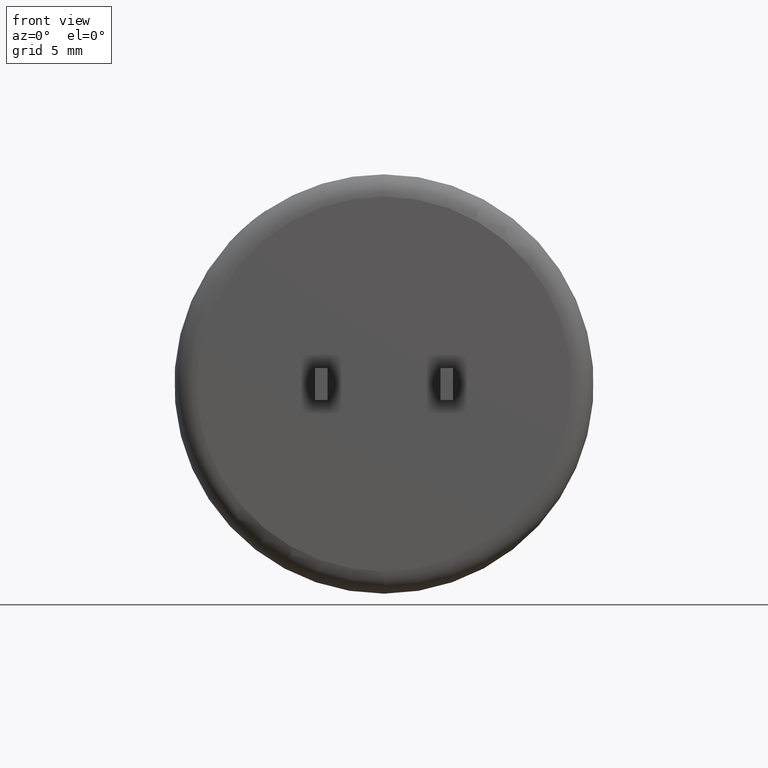
[diagram: clean part render]
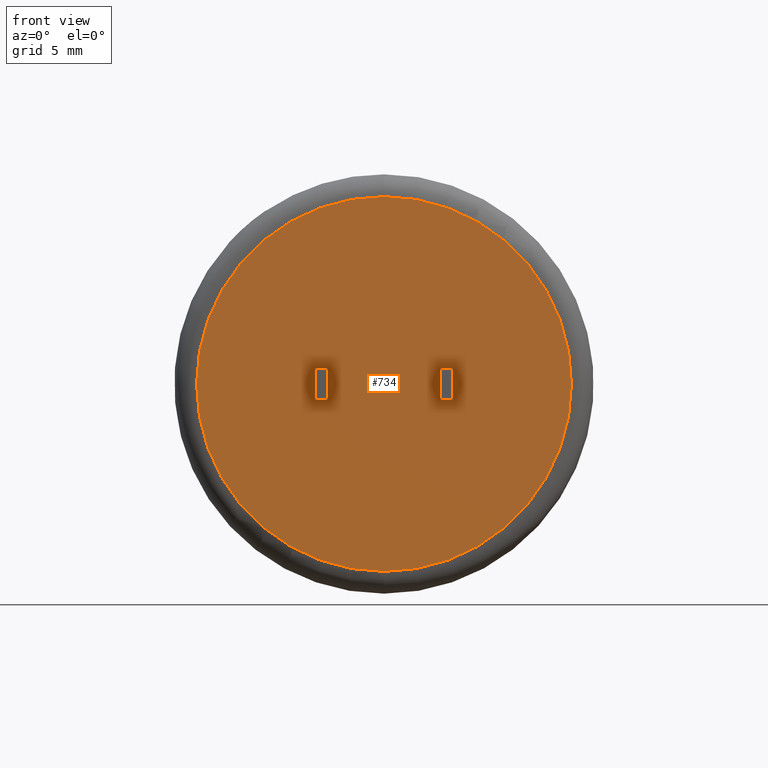
[diagram: same view with one face highlighted and labeled with its STEP entity id]
A machine part, front view. The second image highlights one B-rep face of the part: STEP entity #734.
In plain terms, the highlighted planar face has unit normal (0, 1, 0).
Its self-contained STEP definition (entity closure, byte-faithful):
#112 = CARTESIAN_POINT ( 'NONE',  ( 2.790000000000000000, 0.0000000000000000000, 0.6499999999999968000 ) ) ;
#119 = CARTESIAN_POINT ( 'NONE',  ( -2.289999999999999100, 0.0000000000000000000, -0.6499999999999945800 ) ) ;
#137 = CARTESIAN_POINT ( 'NONE',  ( 9.856569762937473500E-016, 0.0000000000000000000, -7.597000000000000400 ) ) ;
#142 = EDGE_CURVE ( 'NONE', #2269, #1828, #2143, .T. ) ;
#184 = EDGE_CURVE ( 'NONE', #2269, #1069, #1931, .T. ) ;
#188 = ORIENTED_EDGE ( 'NONE', *, *, #142, .F. ) ;
#205 = CARTESIAN_POINT ( 'NONE',  ( -2.789999999999999100, -0.0000000000000000000, -0.6499999999999945800 ) ) ;
#211 = VECTOR ( 'NONE', #2386, 1000.000000000000000 ) ;
#219 = ORIENTED_EDGE ( 'NONE', *, *, #1581, .T. ) ;
#239 = LINE ( 'NONE', #855, #2307 ) ;
#248 = CARTESIAN_POINT ( 'NONE',  ( -2.789999999999999100, 0.0000000000000000000, 5.403370410411914800E-015 ) ) ;
#320 = VERTEX_POINT ( 'NONE', #508 ) ;
#365 = EDGE_CURVE ( 'NONE', #1392, #320, #1459, .T. ) ;
#378 = ORIENTED_EDGE ( 'NONE', *, *, #1602, .T. ) ;
#429 = DIRECTION ( 'NONE',  ( 0.0000000000000000000, 0.0000000000000000000, 1.000000000000000000 ) ) ;
#440 = CARTESIAN_POINT ( 'NONE',  ( -2.289999999999999100, 0.0000000000000000000, 0.6500000000000053500 ) ) ;
#449 = CARTESIAN_POINT ( 'NONE',  ( 0.0000000000000000000, 0.0000000000000000000, 0.0000000000000000000 ) ) ;
#488 = CARTESIAN_POINT ( 'NONE',  ( -2.789999999999999100, 0.0000000000000000000, 0.6500000000000053500 ) ) ;
#508 = CARTESIAN_POINT ( 'NONE',  ( 2.290000000000000000, 0.0000000000000000000, 0.6499999999999966900 ) ) ;
#515 = AXIS2_PLACEMENT_3D ( 'NONE', #1498, #2765, #2121 ) ;
#663 = ORIENTED_EDGE ( 'NONE', *, *, #954, .T. ) ;
#698 = DIRECTION ( 'NONE',  ( -0.0000000000000000000, -0.0000000000000000000, -1.000000000000000000 ) ) ;
#734 = ADVANCED_FACE ( 'NONE', ( #1681, #2743, #1048 ), #1570, .F. ) ;
#788 = EDGE_CURVE ( 'NONE', #320, #1117, #1896, .T. ) ;
#855 = CARTESIAN_POINT ( 'NONE',  ( -2.789999999999999100, 0.0000000000000000000, 0.6500000000000053500 ) ) ;
#887 = VECTOR ( 'NONE', #1711, 1000.000000000000000 ) ;
#903 = CARTESIAN_POINT ( 'NONE',  ( 2.290000000000000000, 0.0000000000000000000, -0.6500000000000031300 ) ) ;
#925 = EDGE_CURVE ( 'NONE', #2752, #1392, #1104, .T. ) ;
#954 = EDGE_CURVE ( 'NONE', #2582, #1828, #1455, .T. ) ;
#962 = CARTESIAN_POINT ( 'NONE',  ( 2.290000000000000000, 0.0000000000000000000, -0.6500000000000031300 ) ) ;
#968 = EDGE_CURVE ( 'NONE', #1069, #2582, #239, .T. ) ;
#1044 = DIRECTION ( 'NONE',  ( 1.000000000000000000, 0.0000000000000000000, 0.0000000000000000000 ) ) ;
#1048 = FACE_BOUND ( 'NONE', #2123, .T. ) ;
#1069 = VERTEX_POINT ( 'NONE', #488 ) ;
#1082 = AXIS2_PLACEMENT_3D ( 'NONE', #449, #2563, #429 ) ;
#1098 = CIRCLE ( 'NONE', #1082, 7.597000000000000400 ) ;
#1104 = LINE ( 'NONE', #2720, #2168 ) ;
#1117 = VERTEX_POINT ( 'NONE', #1534 ) ;
#1118 = CARTESIAN_POINT ( 'NONE',  ( -2.289999999999999100, 0.0000000000000000000, 0.6500000000000053500 ) ) ;
#1167 = ORIENTED_EDGE ( 'NONE', *, *, #184, .T. ) ;
#1176 = CIRCLE ( 'NONE', #515, 7.597000000000000400 ) ;
#1257 = DIRECTION ( 'NONE',  ( 0.0000000000000000000, 0.0000000000000000000, 1.000000000000000000 ) ) ;
#1303 = CARTESIAN_POINT ( 'NONE',  ( 0.0000000000000000000, 0.0000000000000000000, 7.597000000000000400 ) ) ;
#1392 = VERTEX_POINT ( 'NONE', #112 ) ;
#1409 = DIRECTION ( 'NONE',  ( 1.000000000000000000, 0.0000000000000000000, 0.0000000000000000000 ) ) ;
#1455 = LINE ( 'NONE', #440, #2139 ) ;
#1459 = LINE ( 'NONE', #2013, #2552 ) ;
#1498 = CARTESIAN_POINT ( 'NONE',  ( 0.0000000000000000000, 0.0000000000000000000, 0.0000000000000000000 ) ) ;
#1534 = CARTESIAN_POINT ( 'NONE',  ( 2.290000000000000000, 0.0000000000000000000, -0.6500000000000031300 ) ) ;
#1570 = PLANE ( 'NONE',  #2721 ) ;
#1581 = EDGE_CURVE ( 'NONE', #2390, #1916, #1098, .T. ) ;
#1602 = EDGE_CURVE ( 'NONE', #1916, #2390, #1176, .T. ) ;
#1613 = LINE ( 'NONE', #962, #2509 ) ;
#1681 = FACE_OUTER_BOUND ( 'NONE', #2761, .T. ) ;
#1703 = DIRECTION ( 'NONE',  ( 0.0000000000000000000, -0.0000000000000000000, -1.000000000000000000 ) ) ;
#1711 = DIRECTION ( 'NONE',  ( 1.000000000000000000, 0.0000000000000000000, 0.0000000000000000000 ) ) ;
#1779 = DIRECTION ( 'NONE',  ( 0.0000000000000000000, -0.0000000000000000000, 1.000000000000000000 ) ) ;
#1828 = VERTEX_POINT ( 'NONE', #119 ) ;
#1848 = EDGE_CURVE ( 'NONE', #1117, #2752, #1613, .T. ) ;
#1896 = LINE ( 'NONE', #903, #2368 ) ;
#1916 = VERTEX_POINT ( 'NONE', #137 ) ;
#1931 = LINE ( 'NONE', #248, #211 ) ;
#1941 = ORIENTED_EDGE ( 'NONE', *, *, #925, .F. ) ;
#2013 = CARTESIAN_POINT ( 'NONE',  ( 2.290000000000000000, 0.0000000000000000000, 0.6499999999999966900 ) ) ;
#2116 = ORIENTED_EDGE ( 'NONE', *, *, #365, .F. ) ;
#2117 = CARTESIAN_POINT ( 'NONE',  ( 2.790000000000000000, 0.0000000000000000000, -0.6500000000000031300 ) ) ;
#2121 = DIRECTION ( 'NONE',  ( 0.0000000000000000000, 0.0000000000000000000, 1.000000000000000000 ) ) ;
#2123 = EDGE_LOOP ( 'NONE', ( #2568, #2116, #1941, #2295 ) ) ;
#2139 = VECTOR ( 'NONE', #1703, 1000.000000000000000 ) ;
#2143 = LINE ( 'NONE', #205, #887 ) ;
#2168 = VECTOR ( 'NONE', #1257, 1000.000000000000000 ) ;
#2204 = CARTESIAN_POINT ( 'NONE',  ( 0.0000000000000000000, 0.0000000000000000000, 0.0000000000000000000 ) ) ;
#2219 = EDGE_LOOP ( 'NONE', ( #1167, #2594, #663, #188 ) ) ;
#2236 = DIRECTION ( 'NONE',  ( -1.000000000000000000, -0.0000000000000000000, -2.168404344971008900E-016 ) ) ;
#2253 = CARTESIAN_POINT ( 'NONE',  ( -2.789999999999999100, -0.0000000000000000000, -0.6499999999999945800 ) ) ;
#2269 = VERTEX_POINT ( 'NONE', #2253 ) ;
#2295 = ORIENTED_EDGE ( 'NONE', *, *, #1848, .F. ) ;
#2307 = VECTOR ( 'NONE', #1044, 1000.000000000000000 ) ;
#2368 = VECTOR ( 'NONE', #698, 1000.000000000000000 ) ;
#2386 = DIRECTION ( 'NONE',  ( 0.0000000000000000000, 0.0000000000000000000, 1.000000000000000000 ) ) ;
#2390 = VERTEX_POINT ( 'NONE', #1303 ) ;
#2430 = DIRECTION ( 'NONE',  ( 0.0000000000000000000, 1.000000000000000000, 0.0000000000000000000 ) ) ;
#2509 = VECTOR ( 'NONE', #1409, 1000.000000000000000 ) ;
#2552 = VECTOR ( 'NONE', #2236, 1000.000000000000000 ) ;
#2563 = DIRECTION ( 'NONE',  ( -0.0000000000000000000, -1.000000000000000000, -0.0000000000000000000 ) ) ;
#2568 = ORIENTED_EDGE ( 'NONE', *, *, #788, .F. ) ;
#2582 = VERTEX_POINT ( 'NONE', #1118 ) ;
#2594 = ORIENTED_EDGE ( 'NONE', *, *, #968, .T. ) ;
#2720 = CARTESIAN_POINT ( 'NONE',  ( 2.790000000000000000, 0.0000000000000000000, -3.154584513016134000E-015 ) ) ;
#2721 = AXIS2_PLACEMENT_3D ( 'NONE', #2204, #2430, #1779 ) ;
#2743 = FACE_BOUND ( 'NONE', #2219, .T. ) ;
#2752 = VERTEX_POINT ( 'NONE', #2117 ) ;
#2761 = EDGE_LOOP ( 'NONE', ( #219, #378 ) ) ;
#2765 = DIRECTION ( 'NONE',  ( -0.0000000000000000000, -1.000000000000000000, -0.0000000000000000000 ) ) ;